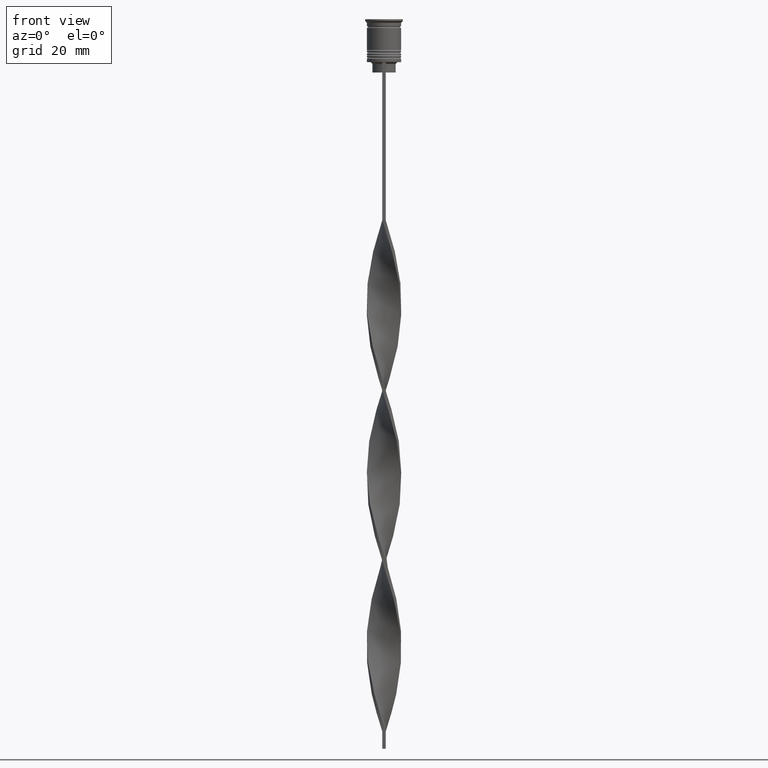
[diagram: clean part render]
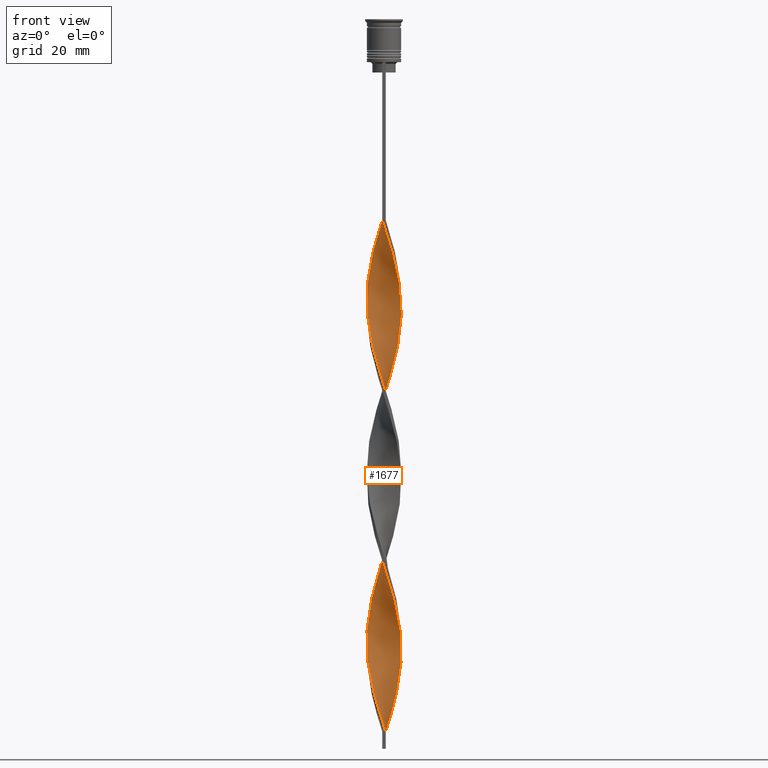
[diagram: same view with one face highlighted and labeled with its STEP entity id]
A machine part, front view. The second image highlights one B-rep face of the part: STEP entity #1677.
In plain terms, the highlighted face is a freeform B-spline surface patch.
Its self-contained STEP definition (entity closure, byte-faithful):
#1 = CARTESIAN_POINT ( 'NONE',  ( 0.4999999999999993339, -5.000000000000000888, -108.1666666666666572 ) ) ;
#6 = CARTESIAN_POINT ( 'NONE',  ( 4.932536701743522656, 0.9592088854640251627, -134.4607843137254974 ) ) ;
#13 = CARTESIAN_POINT ( 'NONE',  ( 4.533641475362163220, 2.216507476658134301, -92.09803921568628482 ) ) ;
#28 = CARTESIAN_POINT ( 'NONE',  ( -2.272444445637942678, -4.481740313928202823, -151.9901960784313530 ) ) ;
#31 = CARTESIAN_POINT ( 'NONE',  ( 1.857150046639457264, 4.692313302143462650, -103.7843137254901933 ) ) ;
#36 = CARTESIAN_POINT ( 'NONE',  ( -1.788740585195520483, 4.718815268696137544, -115.4705882352941018 ) ) ;
#38 = CARTESIAN_POINT ( 'NONE',  ( -5.021420494578373805, -0.5021420494578369143, -83.33333333333332860 ) ) ;
#47 = CARTESIAN_POINT ( 'NONE',  ( 5.024805061206823353, -0.03652529083100791024, -184.1274509803921546 ) ) ;
#68 = CARTESIAN_POINT ( 'NONE',  ( 4.004954025026647102, -3.070367026697014889, -173.9019607843137294 ) ) ;
#72 = CARTESIAN_POINT ( 'NONE',  ( -4.533641475362163220, -2.216507476658133413, -141.7647058823529562 ) ) ;
#74 = CARTESIAN_POINT ( 'NONE',  ( -4.004954025026648878, -3.070367026697016666, -92.09803921568628482 ) ) ;
#87 = CARTESIAN_POINT ( 'NONE',  ( 2.687738844636428759, 4.271167325712943885, -200.1960784313725981 ) ) ;
#90 = CARTESIAN_POINT ( 'NONE',  ( -0.4272610392409010860, -5.006740257327794374, -105.2450980392156765 ) ) ;
#92 = CARTESIAN_POINT ( 'NONE',  ( -2.207052246521971295, 4.514301760086747883, -116.9313725490195992 ) ) ;
#108 = CARTESIAN_POINT ( 'NONE',  ( 4.863729793964998827, 1.345712789752186556, -188.5098039215686185 ) ) ;
#110 = EDGE_CURVE ( 'NONE', #1870, #700, #231, .T. ) ;
#126 = CARTESIAN_POINT ( 'NONE',  ( 3.688768818211569211, -3.412181795536401108, -172.4411764705882035 ) ) ;
#140 = EDGE_LOOP ( 'NONE', ( #1778, #624, #1569, #3165 ) ) ;
#148 = CARTESIAN_POINT ( 'NONE',  ( 0.8912038472716545812, 4.967148691534573501, -153.4509803921568789 ) ) ;
#152 = CARTESIAN_POINT ( 'NONE',  ( -2.998973759622457713, -4.031892407926574329, -195.8137254901960773 ) ) ;
#161 = CARTESIAN_POINT ( 'NONE',  ( 1.788740585195520927, -4.718815268696137544, -65.80392156862745878 ) ) ;
#163 = CARTESIAN_POINT ( 'NONE',  ( 1.857150046639456598, -4.692313302143463538, -112.5490196078431495 ) ) ;
#164 = CARTESIAN_POINT ( 'NONE',  ( -2.687738844636429647, 4.271167325712944773, -65.80392156862745878 ) ) ;
#166 = CARTESIAN_POINT ( 'NONE',  ( -4.500940532747438994, -2.282179822423430871, -188.5098039215686185 ) ) ;
#181 = CARTESIAN_POINT ( 'NONE',  ( 0.4272610392409006419, -5.006740257327792598, -61.42156862745097357 ) ) ;
#193 = CARTESIAN_POINT ( 'NONE',  ( -3.426799919866744482, 3.704571868705844206, -168.0588235294117680 ) ) ;
#213 = CARTESIAN_POINT ( 'NONE',  ( 0.4272610392409006419, -5.006740257327792598, -61.42156862745097357 ) ) ;
#231 =( BOUNDED_CURVE ( )  B_SPLINE_CURVE ( 2, ( #1079, #3580, #181, #3312, #2946, #161, #3617, #1445, #2682, #2621, #788, #1463, #1425, #3879, #1401, #473, #3855, #1108, #2366, #831, #3560, #2666, #3594, #1131, #2052, #3273, #512, #2073, #536, #1773, #2188, #3415, #572, #1901, #1206, #1729, #344, #1619, #711, #36, #92, #3409, #650, #3465, #1897, #1950, #3735, #3121, #1598, #2828, #1298, #2224, #3446, #688, #3152, #379, #2855, #72, #1316, #1509, #1800, #1275, #3091, #3362, #28, #310, #2436, #2414, #910, #3380, #2748, #3114, #2116, #253, #3666, #2498, #2460, #3943, #337, #3976, #3643, #3706, #2133, #563, #601, #2480, #1550, #1574, #1841, #2806, #1234, #949, #3035, #893, #1887, #3955, #3072, #2173, #2198, #2153, #1493, #3337, #3055 ),
 .UNSPECIFIED., .F., .T. ) 
 B_SPLINE_CURVE_WITH_KNOTS ( ( 3, 2, 2, 2, 2, 2, 2, 2, 2, 2, 2, 2, 2, 2, 2, 2, 2, 2, 2, 2, 2, 2, 2, 2, 2, 2, 2, 2, 2, 2, 2, 2, 2, 2, 2, 2, 2, 2, 2, 2, 2, 2, 2, 2, 2, 2, 2, 2, 2, 2, 2, 3 ),
 ( 0.000000000000000000, 0.01470588235294117453, 0.02941176470588234906, 0.04411764705882353227, 0.05882352941176469813, 0.07352941176470588480, 0.08823529411764706454, 0.1029411764705882443, 0.1176470588235293963, 0.1323529411764705899, 0.1470588235294117696, 0.1617647058823529493, 0.1764705882352941291, 0.1911764705882352811, 0.2058823529411764885, 0.2205882352941176405, 0.2352941176470587925, 0.2500000000000000000, 0.2647058823529411797, 0.2794117647058823595, 0.2941176470588235392, 0.3088235294117647189, 0.3235294117647058987, 0.3382352941176470229, 0.3529411764705882582, 0.3676470588235294379, 0.3823529411764705621, 0.3970588235294117418, 0.4117647058823529771, 0.4264705882352941013, 0.4411764705882352811, 0.4558823529411764608, 0.4705882352941175850, 0.4852941176470588203, 0.5000000000000000000, 0.5147058823529411242, 0.5294117647058823595, 0.5441176470588234837, 0.5588235294117647189, 0.5735294117647058432, 0.5882352941176470784, 0.6029411764705882026, 0.6176470588235294379, 0.6323529411764705621, 0.6470588235294117974, 0.6617647058823529216, 0.6764705882352940458, 0.6911764705882351700, 0.7058823529411765163, 0.7205882352941176405, 0.7352941176470588758, 0.7500000000000000000 ),
 .UNSPECIFIED. ) 
 CURVE ( )  GEOMETRIC_REPRESENTATION_ITEM ( )  RATIONAL_B_SPLINE_CURVE ( ( 1.000000000000000000, 0.9957341762950344677, 1.000000000000000000, 0.9957341762950344677, 1.000000000000000000, 0.9957341762950344677, 1.000000000000000000, 0.9957341762950344677, 1.000000000000000000, 0.9957341762950344677, 1.000000000000000000, 0.9957341762950344677, 1.000000000000000000, 0.9957341762950344677, 1.000000000000000000, 0.9957341762950344677, 1.000000000000000000, 0.9957341762950344677, 1.000000000000000000, 0.9957341762950344677, 1.000000000000000000, 0.9957341762950344677, 1.000000000000000000, 0.9957341762950344677, 1.000000000000000000, 0.9957341762950344677, 1.000000000000000000, 0.9957341762950344677, 1.000000000000000000, 0.9957341762950344677, 1.000000000000000000, 0.9957341762950344677, 1.000000000000000000, 0.9957341762950344677, 1.000000000000000000, 0.9957341762950344677, 1.000000000000000000, 0.9957341762950344677, 1.000000000000000000, 0.9957341762950344677, 1.000000000000000000, 0.9957341762950344677, 1.000000000000000000, 0.9957341762950344677, 1.000000000000000000, 0.9957341762950344677, 1.000000000000000000, 0.9957341762950344677, 1.000000000000000000, 0.9957341762950344677, 1.000000000000000000, 0.9957341762950344677, 1.000000000000000000, 0.9957341762950344677, 1.000000000000000000, 0.9957341762950344677, 1.000000000000000000, 0.9957341762950344677, 1.000000000000000000, 0.9957341762950344677, 1.000000000000000000, 0.9957341762950344677, 1.000000000000000000, 0.9957341762950344677, 1.000000000000000000, 0.9957341762950344677, 1.000000000000000000, 0.9957341762950344677, 1.000000000000000000, 0.9957341762950344677, 1.000000000000000000, 0.9957341762950344677, 1.000000000000000000, 0.9957341762950344677, 1.000000000000000000, 0.9957341762950344677, 1.000000000000000000, 0.9957341762950344677, 1.000000000000000000, 0.9957341762950344677, 1.000000000000000000, 0.9957341762950344677, 1.000000000000000000, 0.9957341762950344677, 1.000000000000000000, 0.9957341762950344677, 1.000000000000000000, 0.9957341762950344677, 1.000000000000000000, 0.9957341762950344677, 1.000000000000000000, 0.9957341762950344677, 1.000000000000000000, 0.9957341762950344677, 1.000000000000000000, 0.9957341762950344677, 1.000000000000000000, 0.9957341762950344677, 1.000000000000000000, 0.9957341762950344677, 1.000000000000000000, 0.9957341762950344677, 1.000000000000000000 ) ) 
 REPRESENTATION_ITEM ( '' )  );
#245 = CARTESIAN_POINT ( 'NONE',  ( -4.698685634663581467, 1.781110133205160651, -175.3627450980391984 ) ) ;
#253 = CARTESIAN_POINT ( 'NONE',  ( 1.788740585195520927, -4.718815268696137544, -165.1372549019608016 ) ) ;
#255 = CARTESIAN_POINT ( 'NONE',  ( 2.272444445637942234, 4.481740313928202823, -102.3235294117646959 ) ) ;
#268 = CARTESIAN_POINT ( 'NONE',  ( 4.698685634663582356, -1.781110133205159318, -125.6960784313725412 ) ) ;
#274 = CARTESIAN_POINT ( 'NONE',  ( 1.410234138924802538, 4.822990739511222813, -105.2450980392156765 ) ) ;
#281 = CARTESIAN_POINT ( 'NONE',  ( -3.057269382251586176, 3.987869597209393824, -67.26470588235292780 ) ) ;
#286 = CARTESIAN_POINT ( 'NONE',  ( 0.4999999999999993339, -5.000000000000000888, -108.1666666666666572 ) ) ;
#293 = CARTESIAN_POINT ( 'NONE',  ( -0.5000000000000000000, -4.999999999999999112, -157.8333333333333144 ) ) ;
#310 = CARTESIAN_POINT ( 'NONE',  ( -1.857150046639457930, -4.692313302143461762, -153.4509803921568789 ) ) ;
#314 = CARTESIAN_POINT ( 'NONE',  ( 2.998973759622455937, -4.031892407926573441, -70.18627450980390847 ) ) ;
#322 = CARTESIAN_POINT ( 'NONE',  ( -4.863729793965000603, 1.345712789752187666, -77.49019607843136725 ) ) ;
#325 = CARTESIAN_POINT ( 'NONE',  ( 0.03668176878985187489, -5.046331823121017024, -106.7058823529411882 ) ) ;
#337 = CARTESIAN_POINT ( 'NONE',  ( 3.688768818211569211, -3.412181795536401108, -172.4411764705882035 ) ) ;
#339 = CARTESIAN_POINT ( 'NONE',  ( -4.533641475362163220, -2.216507476658133413, -141.7647058823529562 ) ) ;
#344 = CARTESIAN_POINT ( 'NONE',  ( -0.4272610392408995317, 5.006740257327792598, -111.0882352941176379 ) ) ;
#345 = CARTESIAN_POINT ( 'NONE',  ( -4.932536701743522656, -0.9592088854640269391, -84.79411764705882604 ) ) ;
#353 = CARTESIAN_POINT ( 'NONE',  ( -1.857150046639456598, 4.692313302143463538, -62.88235294117647811 ) ) ;
#360 = CARTESIAN_POINT ( 'NONE',  ( -4.500940532747438105, -2.282179822423430871, -89.17647058823528994 ) ) ;
#371 = CARTESIAN_POINT ( 'NONE',  ( 0.8912038472716523607, -4.967148691534572613, -162.2156862745098351 ) ) ;
#377 = VECTOR ( 'NONE', #2246, 1000.000000000000000 ) ;
#379 = CARTESIAN_POINT ( 'NONE',  ( -4.863729793964999715, -1.345712789752185001, -138.8431372549019329 ) ) ;
#395 = CARTESIAN_POINT ( 'NONE',  ( -4.004954025026648878, -3.070367026697016666, -92.09803921568628482 ) ) ;
#415 = CARTESIAN_POINT ( 'NONE',  ( 1.788740585195520927, -4.718815268696137544, -165.1372549019608016 ) ) ;
#432 = CARTESIAN_POINT ( 'NONE',  ( -1.410234138924802982, 4.822990739511224589, -61.42156862745097357 ) ) ;
#434 = CARTESIAN_POINT ( 'NONE',  ( 4.945959710900135420, 0.8874021287740047059, -187.0490196078431211 ) ) ;
#456 = CARTESIAN_POINT ( 'NONE',  ( -0.9633182312101491451, 4.953668176878985641, -159.2941176470588118 ) ) ;
#473 = CARTESIAN_POINT ( 'NONE',  ( 4.843652908908670618, -1.416275721470217297, -80.41176470588234793 ) ) ;
#476 = CARTESIAN_POINT ( 'NONE',  ( 4.500940532747439882, 2.282179822423429094, -138.8431372549019045 ) ) ;
#481 = CARTESIAN_POINT ( 'NONE',  ( 0.03668176878985187489, -5.046331823121017024, -206.0392156862745026 ) ) ;
#497 = CARTESIAN_POINT ( 'NONE',  ( 3.737982676843116359, -3.358196764280017454, -119.8529411764705799 ) ) ;
#499 =( BOUNDED_SURFACE ( )  B_SPLINE_SURFACE ( 1, 2, ( 
 ( #2058, #2999, #213, #1152, #2081, #3302, #544, #2731, #314, #3978, #3116, #2766, #1554, #1496, #1214, #952, #2793, #3424, #2483, #3728, #3958, #894, #3944, #13, #641, #3668, #1278, #1238, #3364, #1825, #255, #31, #274, #1577, #1199, #2809, #602, #2117, #975, #3057, #1511, #3646, #1865, #936, #1803, #1260, #2201, #3709, #2463, #2176, #3690, #3339, #2501, #3037, #3400, #1891, #2417, #339, #582, #2750, #2156, #2438, #1529, #620, #913, #2136, #1843, #3074, #293, #3382, #3092, #371, #1611, #415, #1911, #2848, #3202, #1371, #126, #68, #1979, #702, #681, #3144, #1050, #1592, #47, #3186, #434, #108, #666, #3457, #2583, #1655, #1674, #3767, #2909, #87, #3803, #3130, #2523, #2606, #1310 ),
 ( #1069, #1963, #1330, #353, #3821, #2275, #2294, #2542, #2889, #3501, #748, #1029, #1349, #2825, #2235, #2219, #1013, #2869, #1942, #1292, #3751, #997, #3167, #395, #1635, #3440, #2253, #3483, #2560, #1923, #3780, #726, #3968, #1736, #286, #1483, #1085, #2933, #3950, #1207, #1225, #596, #497, #3068, #2335, #2037, #268, #1521, #3330, #2950, #3221, #1839, #2757, #3355, #2974, #476, #573, #3258, #767, #3564, #3518, #3051, #1698, #1192, #1506, #148, #903, #2429, #1999, #456, #1814, #3657, #2742, #1385, #2624, #3837, #2312, #2127, #3637, #3242, #245, #2407, #1116, #3543, #794, #2019, #2724, #2646, #1717, #166, #1405, #3861, #886, #3938, #815, #2108, #1304, #1270, #3720, #1251, #693, #3085, #3374 ) ),
 .UNSPECIFIED., .F., .F., .F. ) 
 B_SPLINE_SURFACE_WITH_KNOTS ( ( 2, 2 ),
 ( 3, 2, 2, 2, 2, 2, 2, 2, 2, 2, 2, 2, 2, 2, 2, 2, 2, 2, 2, 2, 2, 2, 2, 2, 2, 2, 2, 2, 2, 2, 2, 2, 2, 2, 2, 2, 2, 2, 2, 2, 2, 2, 2, 2, 2, 2, 2, 2, 2, 2, 2, 3 ),
 ( 0.000000000000000000, 1.000000000000000000 ),
 ( 0.000000000000000000, 0.01470588235294117627, 0.02941176470588235253, 0.04411764705882353227, 0.05882352941176470507, 0.07352941176470588480, 0.08823529411764706454, 0.1029411764705882304, 0.1176470588235294101, 0.1323529411764705899, 0.1470588235294117696, 0.1617647058823529493, 0.1764705882352941291, 0.1911764705882352811, 0.2058823529411764608, 0.2205882352941176405, 0.2352941176470588203, 0.2500000000000000000, 0.2647058823529411797, 0.2794117647058823595, 0.2941176470588235392, 0.3088235294117647189, 0.3235294117647058987, 0.3382352941176470784, 0.3529411764705882582, 0.3676470588235294379, 0.3823529411764705621, 0.3970588235294117418, 0.4117647058823529216, 0.4264705882352941013, 0.4411764705882352811, 0.4558823529411764608, 0.4705882352941176405, 0.4852941176470588203, 0.5000000000000000000, 0.5147058823529411242, 0.5294117647058823595, 0.5441176470588234837, 0.5588235294117647189, 0.5735294117647058432, 0.5882352941176470784, 0.6029411764705882026, 0.6176470588235294379, 0.6323529411764705621, 0.6470588235294117974, 0.6617647058823529216, 0.6764705882352941568, 0.6911764705882352811, 0.7058823529411765163, 0.7205882352941176405, 0.7352941176470588758, 0.7500000000000000000 ),
 .UNSPECIFIED. ) 
 GEOMETRIC_REPRESENTATION_ITEM ( )  RATIONAL_B_SPLINE_SURFACE ( (
 ( 1.000000000000000000, 0.9957341762950344677, 1.000000000000000000, 0.9957341762950344677, 1.000000000000000000, 0.9957341762950344677, 1.000000000000000000, 0.9957341762950344677, 1.000000000000000000, 0.9957341762950344677, 1.000000000000000000, 0.9957341762950344677, 1.000000000000000000, 0.9957341762950344677, 1.000000000000000000, 0.9957341762950344677, 1.000000000000000000, 0.9957341762950344677, 1.000000000000000000, 0.9957341762950344677, 1.000000000000000000, 0.9957341762950344677, 1.000000000000000000, 0.9957341762950344677, 1.000000000000000000, 0.9957341762950344677, 1.000000000000000000, 0.9957341762950344677, 1.000000000000000000, 0.9957341762950344677, 1.000000000000000000, 0.9957341762950344677, 1.000000000000000000, 0.9957341762950344677, 1.000000000000000000, 0.9957341762950344677, 1.000000000000000000, 0.9957341762950344677, 1.000000000000000000, 0.9957341762950344677, 1.000000000000000000, 0.9957341762950344677, 1.000000000000000000, 0.9957341762950344677, 1.000000000000000000, 0.9957341762950344677, 1.000000000000000000, 0.9957341762950344677, 1.000000000000000000, 0.9957341762950344677, 1.000000000000000000, 0.9957341762950344677, 1.000000000000000000, 0.9957341762950344677, 1.000000000000000000, 0.9957341762950344677, 1.000000000000000000, 0.9957341762950344677, 1.000000000000000000, 0.9957341762950344677, 1.000000000000000000, 0.9957341762950344677, 1.000000000000000000, 0.9957341762950344677, 1.000000000000000000, 0.9957341762950344677, 1.000000000000000000, 0.9957341762950344677, 1.000000000000000000, 0.9957341762950344677, 1.000000000000000000, 0.9957341762950344677, 1.000000000000000000, 0.9957341762950344677, 1.000000000000000000, 0.9957341762950344677, 1.000000000000000000, 0.9957341762950344677, 1.000000000000000000, 0.9957341762950344677, 1.000000000000000000, 0.9957341762950344677, 1.000000000000000000, 0.9957341762950344677, 1.000000000000000000, 0.9957341762950344677, 1.000000000000000000, 0.9957341762950344677, 1.000000000000000000, 0.9957341762950344677, 1.000000000000000000, 0.9957341762950344677, 1.000000000000000000, 0.9957341762950344677, 1.000000000000000000, 0.9957341762950344677, 1.000000000000000000, 0.9957341762950344677, 1.000000000000000000, 0.9957341762950344677, 1.000000000000000000, 0.9957341762950344677, 1.000000000000000000),
 ( 1.000000000000000000, 0.9957341762950344677, 1.000000000000000000, 0.9957341762950344677, 1.000000000000000000, 0.9957341762950344677, 1.000000000000000000, 0.9957341762950344677, 1.000000000000000000, 0.9957341762950344677, 1.000000000000000000, 0.9957341762950344677, 1.000000000000000000, 0.9957341762950344677, 1.000000000000000000, 0.9957341762950344677, 1.000000000000000000, 0.9957341762950344677, 1.000000000000000000, 0.9957341762950344677, 1.000000000000000000, 0.9957341762950344677, 1.000000000000000000, 0.9957341762950344677, 1.000000000000000000, 0.9957341762950344677, 1.000000000000000000, 0.9957341762950344677, 1.000000000000000000, 0.9957341762950344677, 1.000000000000000000, 0.9957341762950344677, 1.000000000000000000, 0.9957341762950344677, 1.000000000000000000, 0.9957341762950344677, 1.000000000000000000, 0.9957341762950344677, 1.000000000000000000, 0.9957341762950344677, 1.000000000000000000, 0.9957341762950344677, 1.000000000000000000, 0.9957341762950344677, 1.000000000000000000, 0.9957341762950344677, 1.000000000000000000, 0.9957341762950344677, 1.000000000000000000, 0.9957341762950344677, 1.000000000000000000, 0.9957341762950344677, 1.000000000000000000, 0.9957341762950344677, 1.000000000000000000, 0.9957341762950344677, 1.000000000000000000, 0.9957341762950344677, 1.000000000000000000, 0.9957341762950344677, 1.000000000000000000, 0.9957341762950344677, 1.000000000000000000, 0.9957341762950344677, 1.000000000000000000, 0.9957341762950344677, 1.000000000000000000, 0.9957341762950344677, 1.000000000000000000, 0.9957341762950344677, 1.000000000000000000, 0.9957341762950344677, 1.000000000000000000, 0.9957341762950344677, 1.000000000000000000, 0.9957341762950344677, 1.000000000000000000, 0.9957341762950344677, 1.000000000000000000, 0.9957341762950344677, 1.000000000000000000, 0.9957341762950344677, 1.000000000000000000, 0.9957341762950344677, 1.000000000000000000, 0.9957341762950344677, 1.000000000000000000, 0.9957341762950344677, 1.000000000000000000, 0.9957341762950344677, 1.000000000000000000, 0.9957341762950344677, 1.000000000000000000, 0.9957341762950344677, 1.000000000000000000, 0.9957341762950344677, 1.000000000000000000, 0.9957341762950344677, 1.000000000000000000, 0.9957341762950344677, 1.000000000000000000, 0.9957341762950344677, 1.000000000000000000) ) ) 
 REPRESENTATION_ITEM ( '' )  SURFACE ( )  );
#512 = CARTESIAN_POINT ( 'NONE',  ( 3.737982676843115915, 3.358196764280015678, -96.48039215686274872 ) ) ;
#523 = CARTESIAN_POINT ( 'NONE',  ( -0.8912038472716539150, -4.967148691534573501, -203.1176470588235361 ) ) ;
#536 = CARTESIAN_POINT ( 'NONE',  ( 3.057269382251585288, 3.987869597209392936, -99.40196078431372939 ) ) ;
#544 = CARTESIAN_POINT ( 'NONE',  ( 2.207052246521970851, -4.514301760086748772, -67.26470588235292780 ) ) ;
#563 = CARTESIAN_POINT ( 'NONE',  ( 4.843652908908670618, -1.416275721470217297, -179.7450980392157476 ) ) ;
#564 = CARTESIAN_POINT ( 'NONE',  ( -1.857150046639456598, 4.692313302143463538, -162.2156862745098351 ) ) ;
#572 = CARTESIAN_POINT ( 'NONE',  ( 1.410234138924802538, 4.822990739511222813, -105.2450980392156765 ) ) ;
#573 = CARTESIAN_POINT ( 'NONE',  ( 4.252947278887043048, 2.676273424560224434, -140.3039215686274588 ) ) ;
#582 = CARTESIAN_POINT ( 'NONE',  ( -4.291403454590826172, -2.614164568256160948, -143.2254901960784537 ) ) ;
#596 = CARTESIAN_POINT ( 'NONE',  ( 3.426799919866742705, -3.704571868705845095, -118.3921568627451109 ) ) ;
#598 = CARTESIAN_POINT ( 'NONE',  ( 4.291403454590826172, -2.614164568256163612, -122.7745098039215605 ) ) ;
#600 = CARTESIAN_POINT ( 'NONE',  ( 4.863729793965000603, -1.345712789752187444, -127.1568627450980244 ) ) ;
#601 = CARTESIAN_POINT ( 'NONE',  ( 4.932536701743520879, -0.9592088854640271611, -181.2058823529411598 ) ) ;
#602 = CARTESIAN_POINT ( 'NONE',  ( -0.4272610392408995317, 5.006740257327792598, -111.0882352941176379 ) ) ;
#620 = CARTESIAN_POINT ( 'NONE',  ( -2.687738844636427871, -4.271167325712944773, -150.5294117647058840 ) ) ;
#624 = ORIENTED_EDGE ( 'NONE', *, *, #1631, .T. ) ;
#634 = CARTESIAN_POINT ( 'NONE',  ( 4.843652908908672394, 1.416275721470218629, -135.9215686274509665 ) ) ;
#641 = CARTESIAN_POINT ( 'NONE',  ( 4.291403454590825284, 2.614164568256161392, -93.55882352941176805 ) ) ;
#650 = CARTESIAN_POINT ( 'NONE',  ( -2.998973759622455937, 4.031892407926573441, -119.8529411764705799 ) ) ;
#666 = CARTESIAN_POINT ( 'NONE',  ( 4.698685634663579691, 1.781110133205159318, -189.9705882352941160 ) ) ;
#672 = CARTESIAN_POINT ( 'NONE',  ( -4.672296720828054362, -1.849227771946824417, -87.71568627450979250 ) ) ;
#681 = CARTESIAN_POINT ( 'NONE',  ( 4.672296720828052585, -1.849227771946823307, -178.2843137254901933 ) ) ;
#688 = CARTESIAN_POINT ( 'NONE',  ( -5.028189627835276454, -0.4290914677958234114, -135.9215686274509665 ) ) ;
#693 = CARTESIAN_POINT ( 'NONE',  ( -0.4272610392409010860, -5.006740257327794374, -204.5784313725490335 ) ) ;
#700 = VERTEX_POINT ( 'NONE', #3183 ) ;
#702 = CARTESIAN_POINT ( 'NONE',  ( 4.500940532747437217, -2.282179822423430426, -176.8235294117647243 ) ) ;
#711 = CARTESIAN_POINT ( 'NONE',  ( -1.339972216233587421, 4.842981980115354190, -114.0098039215686185 ) ) ;
#726 = CARTESIAN_POINT ( 'NONE',  ( -0.8912038472716539150, -4.967148691534573501, -103.7843137254901933 ) ) ;
#748 = CARTESIAN_POINT ( 'NONE',  ( -4.291403454590826172, 2.614164568256163168, -73.10784313725488914 ) ) ;
#767 = CARTESIAN_POINT ( 'NONE',  ( 3.688768818211571876, 3.412181795536401108, -143.2254901960784537 ) ) ;
#788 = CARTESIAN_POINT ( 'NONE',  ( 3.688768818211569211, -3.412181795536401108, -73.10784313725488914 ) ) ;
#794 = CARTESIAN_POINT ( 'NONE',  ( -5.024805061206824242, -0.03652529083100704288, -181.2058823529411598 ) ) ;
#801 = CARTESIAN_POINT ( 'NONE',  ( -1.339972216233586977, -4.842981980115355967, -201.6568627450980387 ) ) ;
#815 = CARTESIAN_POINT ( 'NONE',  ( -2.998973759622457713, -4.031892407926574329, -195.8137254901960773 ) ) ;
#831 = CARTESIAN_POINT ( 'NONE',  ( 5.028189627835276454, 0.4290914677958227452, -86.25490196078432348 ) ) ;
#836 = FACE_OUTER_BOUND ( 'NONE', #140, .T. ) ;
#858 = CARTESIAN_POINT ( 'NONE',  ( -0.4272610392409010860, -5.006740257327794374, -204.5784313725490335 ) ) ;
#875 = CARTESIAN_POINT ( 'NONE',  ( -5.028189627835278230, 0.4290914677958227452, -179.7450980392157476 ) ) ;
#884 = CARTESIAN_POINT ( 'NONE',  ( 0.4999999999999993339, -5.000000000000000888, -207.5000000000000000 ) ) ;
#886 = CARTESIAN_POINT ( 'NONE',  ( -3.688768818211570988, -3.412181795536401552, -192.8921568627450824 ) ) ;
#893 = CARTESIAN_POINT ( 'NONE',  ( 4.049165433819487347, 3.011821659854190703, -194.3529411764705799 ) ) ;
#894 = CARTESIAN_POINT ( 'NONE',  ( 4.863729793964998827, 1.345712789752186556, -89.17647058823527573 ) ) ;
#903 = CARTESIAN_POINT ( 'NONE',  ( 0.4272610392408995317, 5.006740257327794374, -154.9117647058823479 ) ) ;
#910 = CARTESIAN_POINT ( 'NONE',  ( -0.5000000000000000000, -4.999999999999999112, -157.8333333333333144 ) ) ;
#913 = CARTESIAN_POINT ( 'NONE',  ( -2.272444445637942678, -4.481740313928202823, -151.9901960784313530 ) ) ;
#927 = CARTESIAN_POINT ( 'NONE',  ( -1.788740585195522481, -4.718815268696138432, -100.8627450980392126 ) ) ;
#936 = CARTESIAN_POINT ( 'NONE',  ( -3.372583611396490877, 3.753996564375788658, -121.3137254901960631 ) ) ;
#949 = CARTESIAN_POINT ( 'NONE',  ( 4.533641475362163220, 2.216507476658134301, -191.4313725490196134 ) ) ;
#952 = CARTESIAN_POINT ( 'NONE',  ( 4.843652908908670618, -1.416275721470217519, -80.41176470588234793 ) ) ;
#969 = CARTESIAN_POINT ( 'NONE',  ( 4.004954025026648878, 3.070367026697015778, -141.7647058823529562 ) ) ;
#975 = CARTESIAN_POINT ( 'NONE',  ( -1.339972216233587421, 4.842981980115354190, -114.0098039215686185 ) ) ;
#997 = CARTESIAN_POINT ( 'NONE',  ( -4.500940532747438994, -2.282179822423430871, -89.17647058823527573 ) ) ;
#1010 = CARTESIAN_POINT ( 'NONE',  ( 5.028189627835277342, -0.4290914677958209134, -130.0784313725490335 ) ) ;
#1013 = CARTESIAN_POINT ( 'NONE',  ( -5.024805061206824242, -0.03652529083100704288, -81.87254901960783116 ) ) ;
#1029 = CARTESIAN_POINT ( 'NONE',  ( -4.533641475362164996, 2.216507476658134301, -74.56862745098038658 ) ) ;
#1042 = CARTESIAN_POINT ( 'NONE',  ( -0.5000000000000000000, -4.999999999999999112, -58.50000000000000000 ) ) ;
#1050 = CARTESIAN_POINT ( 'NONE',  ( 4.932536701743520879, -0.9592088854640271611, -181.2058823529411598 ) ) ;
#1060 = EDGE_CURVE ( 'NONE', #700, #1321, #3388, .T. ) ;
#1069 = CARTESIAN_POINT ( 'NONE',  ( -0.5000000000000000000, 5.000000000000000888, -58.50000000000000000 ) ) ;
#1079 = CARTESIAN_POINT ( 'NONE',  ( -0.5000000000000000000, -4.999999999999999112, -58.50000000000000000 ) ) ;
#1083 = CARTESIAN_POINT ( 'NONE',  ( -0.5000000000000000000, 5.000000000000000888, -58.50000000000000000 ) ) ;
#1085 = CARTESIAN_POINT ( 'NONE',  ( 1.410234138924801650, -4.822990739511224589, -111.0882352941176379 ) ) ;
#1092 = CARTESIAN_POINT ( 'NONE',  ( -4.533641475362164996, 2.216507476658134301, -173.9019607843137294 ) ) ;
#1108 = CARTESIAN_POINT ( 'NONE',  ( 5.021420494578372029, -0.5021420494578375804, -83.33333333333332860 ) ) ;
#1113 = CARTESIAN_POINT ( 'NONE',  ( -1.857150046639456598, 4.692313302143463538, -62.88235294117647101 ) ) ;
#1116 = CARTESIAN_POINT ( 'NONE',  ( -4.945959710900137196, 0.8874021287740044839, -178.2843137254901933 ) ) ;
#1121 = CARTESIAN_POINT ( 'NONE',  ( 3.372583611396489989, 3.753996564375790879, -144.6862745098039227 ) ) ;
#1131 = CARTESIAN_POINT ( 'NONE',  ( 4.533641475362163220, 2.216507476658134301, -92.09803921568628482 ) ) ;
#1152 = CARTESIAN_POINT ( 'NONE',  ( 0.8912038472716523607, -4.967148691534572613, -62.88235294117647811 ) ) ;
#1158 = EDGE_CURVE ( 'NONE', #1870, #3453, #2835, .T. ) ;
#1176 = CARTESIAN_POINT ( 'NONE',  ( 0.8912038472716545812, 4.967148691534573501, -153.4509803921568789 ) ) ;
#1192 = CARTESIAN_POINT ( 'NONE',  ( 1.788740585195520927, 4.718815268696140208, -150.5294117647058840 ) ) ;
#1199 = CARTESIAN_POINT ( 'NONE',  ( 0.5000000000000006661, 4.999999999999999112, -108.1666666666666572 ) ) ;
#1206 = CARTESIAN_POINT ( 'NONE',  ( 0.5000000000000006661, 4.999999999999999112, -108.1666666666666572 ) ) ;
#1207 = CARTESIAN_POINT ( 'NONE',  ( 2.687738844636429203, -4.271167325712945662, -115.4705882352940876 ) ) ;
#1214 = CARTESIAN_POINT ( 'NONE',  ( 4.672296720828052585, -1.849227771946823307, -78.95098039215686470 ) ) ;
#1225 = CARTESIAN_POINT ( 'NONE',  ( 3.057269382251586620, -3.987869597209393824, -116.9313725490195992 ) ) ;
#1234 = CARTESIAN_POINT ( 'NONE',  ( 4.698685634663579691, 1.781110133205159318, -189.9705882352941160 ) ) ;
#1238 = CARTESIAN_POINT ( 'NONE',  ( 3.426799919866742705, 3.704571868705843318, -97.94117647058824616 ) ) ;
#1251 = CARTESIAN_POINT ( 'NONE',  ( -0.8912038472716539150, -4.967148691534573501, -203.1176470588235361 ) ) ;
#1253 = CARTESIAN_POINT ( 'NONE',  ( 2.687738844636429647, -4.271167325712944773, -115.4705882352941018 ) ) ;
#1260 = CARTESIAN_POINT ( 'NONE',  ( -4.004954025026647102, 3.070367026697016222, -124.2352941176470580 ) ) ;
#1270 = CARTESIAN_POINT ( 'NONE',  ( -1.788740585195522481, -4.718815268696138432, -200.1960784313725981 ) ) ;
#1275 = CARTESIAN_POINT ( 'NONE',  ( -3.426799919866744037, -3.704571868705841986, -147.6078431372548891 ) ) ;
#1278 = CARTESIAN_POINT ( 'NONE',  ( 3.737982676843115915, 3.358196764280015678, -96.48039215686274872 ) ) ;
#1292 = CARTESIAN_POINT ( 'NONE',  ( -4.843652908908672394, -1.416275721470217963, -86.25490196078432348 ) ) ;
#1298 = CARTESIAN_POINT ( 'NONE',  ( -4.932536701743520879, 0.9592088854640268281, -131.5392156862745310 ) ) ;
#1304 = CARTESIAN_POINT ( 'NONE',  ( -2.207052246521971739, -4.514301760086749660, -198.7352941176470722 ) ) ;
#1310 = CARTESIAN_POINT ( 'NONE',  ( 0.5000000000000006661, 4.999999999999999112, -207.5000000000000000 ) ) ;
#1316 = CARTESIAN_POINT ( 'NONE',  ( -4.291403454590826172, -2.614164568256160948, -143.2254901960784537 ) ) ;
#1321 = VERTEX_POINT ( 'NONE', #3529 ) ;
#1330 = CARTESIAN_POINT ( 'NONE',  ( -1.410234138924802982, 4.822990739511224589, -61.42156862745097357 ) ) ;
#1349 = CARTESIAN_POINT ( 'NONE',  ( -4.698685634663581467, 1.781110133205160651, -76.02941176470586981 ) ) ;
#1371 = CARTESIAN_POINT ( 'NONE',  ( 3.372583611396490877, -3.753996564375789102, -170.9803921568627629 ) ) ;
#1385 = CARTESIAN_POINT ( 'NONE',  ( -2.687738844636429203, 4.271167325712945662, -165.1372549019608016 ) ) ;
#1389 = CARTESIAN_POINT ( 'NONE',  ( 3.688768818211571876, 3.412181795536401108, -143.2254901960784537 ) ) ;
#1401 = CARTESIAN_POINT ( 'NONE',  ( 4.672296720828052585, -1.849227771946823307, -78.95098039215686470 ) ) ;
#1405 = CARTESIAN_POINT ( 'NONE',  ( -4.252947278887043936, -2.676273424560222658, -189.9705882352941160 ) ) ;
#1425 = CARTESIAN_POINT ( 'NONE',  ( 4.252947278887042160, -2.676273424560222214, -76.02941176470586981 ) ) ;
#1435 = CARTESIAN_POINT ( 'NONE',  ( -4.863729793965000603, 1.345712789752187666, -176.8235294117647243 ) ) ;
#1445 = CARTESIAN_POINT ( 'NONE',  ( 2.625363907848422773, -4.309788251477359111, -68.72549019607842524 ) ) ;
#1455 = CARTESIAN_POINT ( 'NONE',  ( -4.698685634663581467, 1.781110133205160651, -175.3627450980391984 ) ) ;
#1463 = CARTESIAN_POINT ( 'NONE',  ( 4.004954025026647102, -3.070367026697014889, -74.56862745098038658 ) ) ;
#1483 = CARTESIAN_POINT ( 'NONE',  ( 0.9633182312101494782, -4.953668176878985641, -109.6274509803921546 ) ) ;
#1488 = CARTESIAN_POINT ( 'NONE',  ( 3.057269382251586620, -3.987869597209393824, -116.9313725490195992 ) ) ;
#1493 = CARTESIAN_POINT ( 'NONE',  ( 1.410234138924802538, 4.822990739511222813, -204.5784313725490335 ) ) ;
#1496 = CARTESIAN_POINT ( 'NONE',  ( 4.500940532747437217, -2.282179822423430426, -77.49019607843138147 ) ) ;
#1506 = CARTESIAN_POINT ( 'NONE',  ( 1.339972216233587421, 4.842981980115355967, -151.9901960784313530 ) ) ;
#1508 = CARTESIAN_POINT ( 'NONE',  ( 4.533641475362164108, -2.216507476658135634, -124.2352941176470580 ) ) ;
#1509 = CARTESIAN_POINT ( 'NONE',  ( -4.049165433819486459, -3.011821659854192479, -144.6862745098039227 ) ) ;
#1511 = CARTESIAN_POINT ( 'NONE',  ( -2.207052246521971295, 4.514301760086747883, -116.9313725490195992 ) ) ;
#1518 = CARTESIAN_POINT ( 'NONE',  ( -3.426799919866744482, 3.704571868705844206, -68.72549019607842524 ) ) ;
#1521 = CARTESIAN_POINT ( 'NONE',  ( 4.863729793965000603, -1.345712789752187444, -127.1568627450980102 ) ) ;
#1529 = CARTESIAN_POINT ( 'NONE',  ( -3.057269382251587064, -3.987869597209391159, -149.0686274509803866 ) ) ;
#1538 = CARTESIAN_POINT ( 'NONE',  ( -4.049165433819489124, 3.011821659854192035, -71.64705882352942012 ) ) ;
#1550 = CARTESIAN_POINT ( 'NONE',  ( 5.024805061206823353, -0.03652529083100791024, -184.1274509803921546 ) ) ;
#1554 = CARTESIAN_POINT ( 'NONE',  ( 4.252947278887042160, -2.676273424560222214, -76.02941176470586981 ) ) ;
#1563 = CARTESIAN_POINT ( 'NONE',  ( -3.737982676843116359, 3.358196764280017454, -70.18627450980390847 ) ) ;
#1569 = ORIENTED_EDGE ( 'NONE', *, *, #1060, .F. ) ;
#1574 = CARTESIAN_POINT ( 'NONE',  ( 5.028189627835276454, 0.4290914677958227452, -185.5882352941176237 ) ) ;
#1577 = CARTESIAN_POINT ( 'NONE',  ( 0.9633182312101483680, 4.953668176878984752, -106.7058823529412024 ) ) ;
#1586 = CARTESIAN_POINT ( 'NONE',  ( 4.500940532747438994, 2.282179822423429538, -138.8431372549019329 ) ) ;
#1592 = CARTESIAN_POINT ( 'NONE',  ( 5.021420494578371141, -0.5021420494578375804, -182.6666666666666572 ) ) ;
#1598 = CARTESIAN_POINT ( 'NONE',  ( -4.672296720828052585, 1.849227771946825083, -128.6176470588235361 ) ) ;
#1611 = CARTESIAN_POINT ( 'NONE',  ( 1.339972216233586311, -4.842981980115355078, -163.6764705882352757 ) ) ;
#1619 = CARTESIAN_POINT ( 'NONE',  ( -0.8912038472716523607, 4.967148691534572613, -112.5490196078431495 ) ) ;
#1631 = EDGE_CURVE ( 'NONE', #3453, #1321, #2565, .T. ) ;
#1635 = CARTESIAN_POINT ( 'NONE',  ( -3.688768818211570988, -3.412181795536401552, -93.55882352941176805 ) ) ;
#1655 = CARTESIAN_POINT ( 'NONE',  ( 4.049165433819487347, 3.011821659854191147, -194.3529411764705799 ) ) ;
#1658 = CARTESIAN_POINT ( 'NONE',  ( -2.207052246521971739, -4.514301760086749660, -99.40196078431372939 ) ) ;
#1674 = CARTESIAN_POINT ( 'NONE',  ( 3.737982676843115915, 3.358196764280015678, -195.8137254901960773 ) ) ;
#1677 = ADVANCED_FACE ( 'NONE', ( #836 ), #499, .T. ) ;
#1698 = CARTESIAN_POINT ( 'NONE',  ( 2.207052246521974403, 4.514301760086747883, -149.0686274509803866 ) ) ;
#1717 = CARTESIAN_POINT ( 'NONE',  ( -4.672296720828054362, -1.849227771946824417, -187.0490196078431211 ) ) ;
#1722 = CARTESIAN_POINT ( 'NONE',  ( -3.737982676843116359, 3.358196764280017454, -169.5196078431372371 ) ) ;
#1729 = CARTESIAN_POINT ( 'NONE',  ( 0.03668176878985084099, 5.046331823121014359, -109.6274509803921404 ) ) ;
#1736 = CARTESIAN_POINT ( 'NONE',  ( 0.03668176878985188183, -5.046331823121017024, -106.7058823529412024 ) ) ;
#1741 = CARTESIAN_POINT ( 'NONE',  ( -3.057269382251586176, 3.987869597209393824, -166.5980392156862706 ) ) ;
#1767 = CARTESIAN_POINT ( 'NONE',  ( -0.9633182312101491451, 4.953668176878985641, -159.2941176470588118 ) ) ;
#1773 = CARTESIAN_POINT ( 'NONE',  ( 2.687738844636429203, 4.271167325712942997, -100.8627450980392126 ) ) ;
#1778 = ORIENTED_EDGE ( 'NONE', *, *, #1158, .T. ) ;
#1783 = CARTESIAN_POINT ( 'NONE',  ( -2.687738844636429647, 4.271167325712944773, -165.1372549019608016 ) ) ;
#1800 = CARTESIAN_POINT ( 'NONE',  ( -3.737982676843114582, -3.358196764280017010, -146.1470588235294201 ) ) ;
#1803 = CARTESIAN_POINT ( 'NONE',  ( -3.688768818211568323, 3.412181795536401552, -122.7745098039215605 ) ) ;
#1814 = CARTESIAN_POINT ( 'NONE',  ( -1.410234138924802982, 4.822990739511224589, -160.7549019607842808 ) ) ;
#1825 = CARTESIAN_POINT ( 'NONE',  ( 2.687738844636428759, 4.271167325712943885, -100.8627450980392126 ) ) ;
#1839 = CARTESIAN_POINT ( 'NONE',  ( 5.021420494578372917, 0.5021420494578362481, -133.0000000000000000 ) ) ;
#1841 = CARTESIAN_POINT ( 'NONE',  ( 4.945959710900135420, 0.8874021287740047059, -187.0490196078431211 ) ) ;
#1843 = CARTESIAN_POINT ( 'NONE',  ( -1.410234138924801206, -4.822990739511222813, -154.9117647058823479 ) ) ;
#1855 = CARTESIAN_POINT ( 'NONE',  ( -1.339972216233586977, -4.842981980115355967, -102.3235294117646959 ) ) ;
#1865 = CARTESIAN_POINT ( 'NONE',  ( -2.998973759622455937, 4.031892407926573441, -119.8529411764705799 ) ) ;
#1870 = VERTEX_POINT ( 'NONE', #1042 ) ;
#1873 = CARTESIAN_POINT ( 'NONE',  ( -4.698685634663581467, 1.781110133205160651, -76.02941176470586981 ) ) ;
#1880 = CARTESIAN_POINT ( 'NONE',  ( 4.672296720828054362, 1.849227771946823751, -137.3823529411764639 ) ) ;
#1887 = CARTESIAN_POINT ( 'NONE',  ( 3.737982676843115915, 3.358196764280015678, -195.8137254901960773 ) ) ;
#1891 = CARTESIAN_POINT ( 'NONE',  ( -4.863729793964999715, -1.345712789752185223, -138.8431372549019045 ) ) ;
#1897 = CARTESIAN_POINT ( 'NONE',  ( -3.688768818211568323, 3.412181795536401552, -122.7745098039215605 ) ) ;
#1901 = CARTESIAN_POINT ( 'NONE',  ( 0.9633182312101482569, 4.953668176878984752, -106.7058823529411882 ) ) ;
#1911 = CARTESIAN_POINT ( 'NONE',  ( 2.207052246521970851, -4.514301760086748772, -166.5980392156862706 ) ) ;
#1923 = CARTESIAN_POINT ( 'NONE',  ( -1.788740585195522481, -4.718815268696138432, -100.8627450980392126 ) ) ;
#1933 = CARTESIAN_POINT ( 'NONE',  ( -0.5000000000000000000, -4.999999999999999112, -58.50000000000000000 ) ) ;
#1942 = CARTESIAN_POINT ( 'NONE',  ( -4.932536701743522656, -0.9592088854640269391, -84.79411764705882604 ) ) ;
#1950 = CARTESIAN_POINT ( 'NONE',  ( -4.004954025026647102, 3.070367026697016222, -124.2352941176470580 ) ) ;
#1963 = CARTESIAN_POINT ( 'NONE',  ( -0.9633182312101491451, 4.953668176878985641, -59.96078431372549744 ) ) ;
#1979 = CARTESIAN_POINT ( 'NONE',  ( 4.252947278887042160, -2.676273424560222214, -175.3627450980391984 ) ) ;
#1999 = CARTESIAN_POINT ( 'NONE',  ( -0.5000000000000000000, 5.000000000000000888, -157.8333333333333144 ) ) ;
#2019 = CARTESIAN_POINT ( 'NONE',  ( -5.021420494578372917, -0.5021420494578369143, -182.6666666666666572 ) ) ;
#2024 = CARTESIAN_POINT ( 'NONE',  ( -0.03668176878985122263, 5.046331823121017024, -156.3725490196078454 ) ) ;
#2035 = CARTESIAN_POINT ( 'NONE',  ( -0.9633182312101491451, 4.953668176878985641, -59.96078431372549034 ) ) ;
#2037 = CARTESIAN_POINT ( 'NONE',  ( 4.533641475362164108, -2.216507476658135634, -124.2352941176470580 ) ) ;
#2041 = CARTESIAN_POINT ( 'NONE',  ( 1.339972216233587421, 4.842981980115355967, -151.9901960784313530 ) ) ;
#2052 = CARTESIAN_POINT ( 'NONE',  ( 4.291403454590825284, 2.614164568256161392, -93.55882352941176805 ) ) ;
#2058 = CARTESIAN_POINT ( 'NONE',  ( -0.5000000000000000000, -4.999999999999999112, -58.50000000000000000 ) ) ;
#2073 = CARTESIAN_POINT ( 'NONE',  ( 3.426799919866743149, 3.704571868705843318, -97.94117647058824616 ) ) ;
#2081 = CARTESIAN_POINT ( 'NONE',  ( 1.339972216233586311, -4.842981980115355078, -64.34313725490196134 ) ) ;
#2096 = CARTESIAN_POINT ( 'NONE',  ( 1.410234138924801650, -4.822990739511224589, -111.0882352941176379 ) ) ;
#2097 = CARTESIAN_POINT ( 'NONE',  ( -4.672296720828054362, -1.849227771946824417, -187.0490196078431211 ) ) ;
#2108 = CARTESIAN_POINT ( 'NONE',  ( -2.625363907848424105, -4.309788251477359999, -197.2745098039215463 ) ) ;
#2110 = CARTESIAN_POINT ( 'NONE',  ( 4.252947278887043048, 2.676273424560224434, -140.3039215686274588 ) ) ;
#2116 = CARTESIAN_POINT ( 'NONE',  ( 1.339972216233586311, -4.842981980115355078, -163.6764705882352757 ) ) ;
#2117 = CARTESIAN_POINT ( 'NONE',  ( -0.8912038472716523607, 4.967148691534572613, -112.5490196078431495 ) ) ;
#2127 = CARTESIAN_POINT ( 'NONE',  ( -4.049165433819489124, 3.011821659854192479, -170.9803921568627629 ) ) ;
#2133 = CARTESIAN_POINT ( 'NONE',  ( 4.672296720828052585, -1.849227771946823307, -178.2843137254901933 ) ) ;
#2136 = CARTESIAN_POINT ( 'NONE',  ( -1.857150046639457930, -4.692313302143461762, -153.4509803921568789 ) ) ;
#2148 = CARTESIAN_POINT ( 'NONE',  ( 5.021420494578373805, 0.5021420494578362481, -133.0000000000000000 ) ) ;
#2153 = CARTESIAN_POINT ( 'NONE',  ( 1.857150046639457264, 4.692313302143462650, -203.1176470588235361 ) ) ;
#2156 = CARTESIAN_POINT ( 'NONE',  ( -3.737982676843114582, -3.358196764280017010, -146.1470588235294201 ) ) ;
#2173 = CARTESIAN_POINT ( 'NONE',  ( 2.687738844636429203, 4.271167325712942997, -200.1960784313725696 ) ) ;
#2176 = CARTESIAN_POINT ( 'NONE',  ( -4.843652908908671506, 1.416275721470215743, -130.0784313725490335 ) ) ;
#2188 = CARTESIAN_POINT ( 'NONE',  ( 2.272444445637942234, 4.481740313928202823, -102.3235294117646959 ) ) ;
#2198 = CARTESIAN_POINT ( 'NONE',  ( 2.272444445637942234, 4.481740313928202823, -201.6568627450980387 ) ) ;
#2201 = CARTESIAN_POINT ( 'NONE',  ( -4.252947278887043048, 2.676273424560220882, -125.6960784313725412 ) ) ;
#2219 = CARTESIAN_POINT ( 'NONE',  ( -5.028189627835278230, 0.4290914677958227452, -80.41176470588234793 ) ) ;
#2224 = CARTESIAN_POINT ( 'NONE',  ( -5.021420494578372029, 0.5021420494578382465, -133.0000000000000000 ) ) ;
#2235 = CARTESIAN_POINT ( 'NONE',  ( -4.945959710900137196, 0.8874021287740044839, -78.95098039215686470 ) ) ;
#2246 = DIRECTION ( 'NONE',  ( 0.000000000000000000, 1.000000000000000000, 0.000000000000000000 ) ) ;
#2253 = CARTESIAN_POINT ( 'NONE',  ( -2.998973759622457713, -4.031892407926574329, -96.48039215686274872 ) ) ;
#2275 = CARTESIAN_POINT ( 'NONE',  ( -2.687738844636429203, 4.271167325712945662, -65.80392156862747299 ) ) ;
#2282 = CARTESIAN_POINT ( 'NONE',  ( -5.028189627835278230, 0.4290914677958227452, -80.41176470588234793 ) ) ;
#2294 = CARTESIAN_POINT ( 'NONE',  ( -3.057269382251586176, 3.987869597209393824, -67.26470588235292780 ) ) ;
#2312 = CARTESIAN_POINT ( 'NONE',  ( -3.737982676843116359, 3.358196764280017454, -169.5196078431372371 ) ) ;
#2319 = CARTESIAN_POINT ( 'NONE',  ( -4.932536701743522656, -0.9592088854640269391, -184.1274509803921546 ) ) ;
#2335 = CARTESIAN_POINT ( 'NONE',  ( 4.291403454590826172, -2.614164568256163612, -122.7745098039215605 ) ) ;
#2342 = CARTESIAN_POINT ( 'NONE',  ( 2.998973759622456825, 4.031892407926575217, -146.1470588235294201 ) ) ;
#2355 = CARTESIAN_POINT ( 'NONE',  ( -4.252947278887043936, -2.676273424560222658, -189.9705882352941160 ) ) ;
#2364 = CARTESIAN_POINT ( 'NONE',  ( 0.4999999999999997780, -1.666666666666667851, -207.5000000000000000 ) ) ;
#2366 = CARTESIAN_POINT ( 'NONE',  ( 5.024805061206823353, -0.03652529083100791024, -84.79411764705882604 ) ) ;
#2374 = CARTESIAN_POINT ( 'NONE',  ( -1.788740585195522481, -4.718815268696138432, -200.1960784313725696 ) ) ;
#2395 = CARTESIAN_POINT ( 'NONE',  ( -4.049165433819489124, 3.011821659854192035, -170.9803921568627629 ) ) ;
#2405 = CARTESIAN_POINT ( 'NONE',  ( 0.5000000000000006661, 4.999999999999999112, -207.5000000000000000 ) ) ;
#2407 = CARTESIAN_POINT ( 'NONE',  ( -4.863729793965000603, 1.345712789752187666, -176.8235294117647243 ) ) ;
#2414 = CARTESIAN_POINT ( 'NONE',  ( -0.9633182312101489231, -4.953668176878984752, -156.3725490196078454 ) ) ;
#2417 = CARTESIAN_POINT ( 'NONE',  ( -4.698685634663579691, -1.781110133205161095, -140.3039215686274588 ) ) ;
#2429 = CARTESIAN_POINT ( 'NONE',  ( -0.03668176878985122263, 5.046331823121017024, -156.3725490196078454 ) ) ;
#2436 = CARTESIAN_POINT ( 'NONE',  ( -1.410234138924801206, -4.822990739511222813, -154.9117647058823479 ) ) ;
#2438 = CARTESIAN_POINT ( 'NONE',  ( -3.426799919866743593, -3.704571868705841986, -147.6078431372548891 ) ) ;
#2449 = CARTESIAN_POINT ( 'NONE',  ( -2.625363907848424105, -4.309788251477359999, -97.94117647058824616 ) ) ;
#2455 = CARTESIAN_POINT ( 'NONE',  ( 2.272444445637944010, -4.481740313928203712, -114.0098039215686185 ) ) ;
#2460 = CARTESIAN_POINT ( 'NONE',  ( 2.998973759622455937, -4.031892407926573441, -169.5196078431372371 ) ) ;
#2463 = CARTESIAN_POINT ( 'NONE',  ( -4.672296720828052585, 1.849227771946825083, -128.6176470588235361 ) ) ;
#2472 = CARTESIAN_POINT ( 'NONE',  ( -4.533641475362164996, 2.216507476658134301, -74.56862745098038658 ) ) ;
#2480 = CARTESIAN_POINT ( 'NONE',  ( 5.021420494578372029, -0.5021420494578375804, -182.6666666666666856 ) ) ;
#2483 = CARTESIAN_POINT ( 'NONE',  ( 5.024805061206823353, -0.03652529083100791024, -84.79411764705882604 ) ) ;
#2498 = CARTESIAN_POINT ( 'NONE',  ( 2.625363907848422773, -4.309788251477359111, -168.0588235294117680 ) ) ;
#2501 = CARTESIAN_POINT ( 'NONE',  ( -5.024805061206823353, 0.03652529083100964497, -134.4607843137254974 ) ) ;
#2523 = CARTESIAN_POINT ( 'NONE',  ( 1.410234138924802538, 4.822990739511222813, -204.5784313725490335 ) ) ;
#2542 = CARTESIAN_POINT ( 'NONE',  ( -3.426799919866744037, 3.704571868705844206, -68.72549019607842524 ) ) ;
#2560 = CARTESIAN_POINT ( 'NONE',  ( -2.207052246521971739, -4.514301760086749660, -99.40196078431372939 ) ) ;
#2565 =( BOUNDED_CURVE ( )  B_SPLINE_CURVE ( 2, ( #1083, #2035, #432, #1113, #3240, #164, #281, #1518, #1563, #1538, #3986, #2472, #1873, #322, #2857, #2282, #3490, #38, #345, #3430, #672, #360, #2831, #74, #3914, #3192, #2777, #2449, #1658, #927, #1855, #3084, #90, #325, #1, #2799, #2096, #163, #2455, #1253, #1488, #3640, #2745, #3359, #598, #1508, #3664, #600, #3071, #1010, #3685, #2148, #6, #634, #1880, #1586, #2110, #969, #1389, #1121, #2342, #2628, #3841, #2674, #2041, #1176, #3246, #2024, #3015, #1767, #3281, #564, #3625, #1783, #1741, #193, #1722, #2395, #3550, #1092, #1455, #1435, #3605, #875, #2691, #3571, #2319, #3925, #2097, #2708, #2355, #3867, #3903, #3888, #152, #2980, #3321, #2374, #801, #523, #858, #481, #2937 ),
 .UNSPECIFIED., .F., .T. ) 
 B_SPLINE_CURVE_WITH_KNOTS ( ( 3, 2, 2, 2, 2, 2, 2, 2, 2, 2, 2, 2, 2, 2, 2, 2, 2, 2, 2, 2, 2, 2, 2, 2, 2, 2, 2, 2, 2, 2, 2, 2, 2, 2, 2, 2, 2, 2, 2, 2, 2, 2, 2, 2, 2, 2, 2, 2, 2, 2, 2, 3 ),
 ( 0.000000000000000000, 0.01470588235294117453, 0.02941176470588234906, 0.04411764705882353227, 0.05882352941176469813, 0.07352941176470588480, 0.08823529411764706454, 0.1029411764705882443, 0.1176470588235293963, 0.1323529411764705899, 0.1470588235294117696, 0.1617647058823529493, 0.1764705882352941291, 0.1911764705882352811, 0.2058823529411764885, 0.2205882352941176405, 0.2352941176470587925, 0.2500000000000000000, 0.2647058823529411797, 0.2794117647058823595, 0.2941176470588235392, 0.3088235294117647189, 0.3235294117647058987, 0.3382352941176470229, 0.3529411764705882582, 0.3676470588235294379, 0.3823529411764705621, 0.3970588235294117418, 0.4117647058823529771, 0.4264705882352941013, 0.4411764705882352811, 0.4558823529411764608, 0.4705882352941175850, 0.4852941176470588203, 0.5000000000000000000, 0.5147058823529411242, 0.5294117647058823595, 0.5441176470588234837, 0.5588235294117647189, 0.5735294117647058432, 0.5882352941176470784, 0.6029411764705882026, 0.6176470588235294379, 0.6323529411764705621, 0.6470588235294117974, 0.6617647058823529216, 0.6764705882352940458, 0.6911764705882351700, 0.7058823529411765163, 0.7205882352941176405, 0.7352941176470588758, 0.7500000000000000000 ),
 .UNSPECIFIED. ) 
 CURVE ( )  GEOMETRIC_REPRESENTATION_ITEM ( )  RATIONAL_B_SPLINE_CURVE ( ( 1.000000000000000000, 0.9957341762950344677, 1.000000000000000000, 0.9957341762950344677, 1.000000000000000000, 0.9957341762950344677, 1.000000000000000000, 0.9957341762950344677, 1.000000000000000000, 0.9957341762950344677, 1.000000000000000000, 0.9957341762950344677, 1.000000000000000000, 0.9957341762950344677, 1.000000000000000000, 0.9957341762950344677, 1.000000000000000000, 0.9957341762950344677, 1.000000000000000000, 0.9957341762950344677, 1.000000000000000000, 0.9957341762950344677, 1.000000000000000000, 0.9957341762950344677, 1.000000000000000000, 0.9957341762950344677, 1.000000000000000000, 0.9957341762950344677, 1.000000000000000000, 0.9957341762950344677, 1.000000000000000000, 0.9957341762950344677, 1.000000000000000000, 0.9957341762950344677, 1.000000000000000000, 0.9957341762950344677, 1.000000000000000000, 0.9957341762950344677, 1.000000000000000000, 0.9957341762950344677, 1.000000000000000000, 0.9957341762950344677, 1.000000000000000000, 0.9957341762950344677, 1.000000000000000000, 0.9957341762950344677, 1.000000000000000000, 0.9957341762950344677, 1.000000000000000000, 0.9957341762950344677, 1.000000000000000000, 0.9957341762950344677, 1.000000000000000000, 0.9957341762950344677, 1.000000000000000000, 0.9957341762950344677, 1.000000000000000000, 0.9957341762950344677, 1.000000000000000000, 0.9957341762950344677, 1.000000000000000000, 0.9957341762950344677, 1.000000000000000000, 0.9957341762950344677, 1.000000000000000000, 0.9957341762950344677, 1.000000000000000000, 0.9957341762950344677, 1.000000000000000000, 0.9957341762950344677, 1.000000000000000000, 0.9957341762950344677, 1.000000000000000000, 0.9957341762950344677, 1.000000000000000000, 0.9957341762950344677, 1.000000000000000000, 0.9957341762950344677, 1.000000000000000000, 0.9957341762950344677, 1.000000000000000000, 0.9957341762950344677, 1.000000000000000000, 0.9957341762950344677, 1.000000000000000000, 0.9957341762950344677, 1.000000000000000000, 0.9957341762950344677, 1.000000000000000000, 0.9957341762950344677, 1.000000000000000000, 0.9957341762950344677, 1.000000000000000000, 0.9957341762950344677, 1.000000000000000000, 0.9957341762950344677, 1.000000000000000000, 0.9957341762950344677, 1.000000000000000000, 0.9957341762950344677, 1.000000000000000000, 0.9957341762950344677, 1.000000000000000000 ) ) 
 REPRESENTATION_ITEM ( '' )  );
#2583 = CARTESIAN_POINT ( 'NONE',  ( 4.291403454590825284, 2.614164568256161392, -192.8921568627450824 ) ) ;
#2606 = CARTESIAN_POINT ( 'NONE',  ( 0.9633182312101483680, 4.953668176878984752, -206.0392156862745026 ) ) ;
#2621 = CARTESIAN_POINT ( 'NONE',  ( 3.372583611396490433, -3.753996564375789102, -71.64705882352942012 ) ) ;
#2624 = CARTESIAN_POINT ( 'NONE',  ( -3.057269382251586176, 3.987869597209393824, -166.5980392156862706 ) ) ;
#2628 = CARTESIAN_POINT ( 'NONE',  ( 2.625363907848424549, 4.309788251477359999, -147.6078431372548891 ) ) ;
#2646 = CARTESIAN_POINT ( 'NONE',  ( -4.843652908908672394, -1.416275721470217963, -185.5882352941176237 ) ) ;
#2666 = CARTESIAN_POINT ( 'NONE',  ( 4.863729793964998827, 1.345712789752186556, -89.17647058823528994 ) ) ;
#2674 = CARTESIAN_POINT ( 'NONE',  ( 1.788740585195520927, 4.718815268696140208, -150.5294117647058840 ) ) ;
#2682 = CARTESIAN_POINT ( 'NONE',  ( 2.998973759622455937, -4.031892407926573441, -70.18627450980390847 ) ) ;
#2691 = CARTESIAN_POINT ( 'NONE',  ( -5.024805061206824242, -0.03652529083100704288, -181.2058823529411598 ) ) ;
#2708 = CARTESIAN_POINT ( 'NONE',  ( -4.500940532747438105, -2.282179822423430871, -188.5098039215686185 ) ) ;
#2724 = CARTESIAN_POINT ( 'NONE',  ( -4.932536701743522656, -0.9592088854640269391, -184.1274509803921546 ) ) ;
#2731 = CARTESIAN_POINT ( 'NONE',  ( 2.625363907848422773, -4.309788251477359111, -68.72549019607842524 ) ) ;
#2742 = CARTESIAN_POINT ( 'NONE',  ( -2.272444445637943122, 4.481740313928203712, -163.6764705882352757 ) ) ;
#2745 = CARTESIAN_POINT ( 'NONE',  ( 3.737982676843116359, -3.358196764280017454, -119.8529411764705799 ) ) ;
#2748 = CARTESIAN_POINT ( 'NONE',  ( 0.4272610392409006419, -5.006740257327792598, -160.7549019607842808 ) ) ;
#2750 = CARTESIAN_POINT ( 'NONE',  ( -4.049165433819486459, -3.011821659854192923, -144.6862745098039227 ) ) ;
#2757 = CARTESIAN_POINT ( 'NONE',  ( 4.932536701743522656, 0.9592088854640251627, -134.4607843137254974 ) ) ;
#2766 = CARTESIAN_POINT ( 'NONE',  ( 4.004954025026647102, -3.070367026697014889, -74.56862745098038658 ) ) ;
#2777 = CARTESIAN_POINT ( 'NONE',  ( -2.998973759622457713, -4.031892407926574329, -96.48039215686274872 ) ) ;
#2793 = CARTESIAN_POINT ( 'NONE',  ( 4.932536701743520879, -0.9592088854640271611, -81.87254901960783116 ) ) ;
#2799 = CARTESIAN_POINT ( 'NONE',  ( 0.9633182312101494782, -4.953668176878985641, -109.6274509803921404 ) ) ;
#2806 = CARTESIAN_POINT ( 'NONE',  ( 4.863729793964998827, 1.345712789752186556, -188.5098039215686185 ) ) ;
#2809 = CARTESIAN_POINT ( 'NONE',  ( 0.03668176878985084099, 5.046331823121014359, -109.6274509803921546 ) ) ;
#2825 = CARTESIAN_POINT ( 'NONE',  ( -4.863729793965000603, 1.345712789752187666, -77.49019607843138147 ) ) ;
#2828 = CARTESIAN_POINT ( 'NONE',  ( -4.843652908908671506, 1.416275721470215743, -130.0784313725490335 ) ) ;
#2831 = CARTESIAN_POINT ( 'NONE',  ( -4.252947278887043936, -2.676273424560222658, -90.63725490196078738 ) ) ;
#2835 = LINE ( 'NONE', #1933, #377 ) ;
#2848 = CARTESIAN_POINT ( 'NONE',  ( 2.625363907848422773, -4.309788251477359111, -168.0588235294117680 ) ) ;
#2855 = CARTESIAN_POINT ( 'NONE',  ( -4.698685634663579691, -1.781110133205161095, -140.3039215686274588 ) ) ;
#2857 = CARTESIAN_POINT ( 'NONE',  ( -4.945959710900137196, 0.8874021287740044839, -78.95098039215686470 ) ) ;
#2869 = CARTESIAN_POINT ( 'NONE',  ( -5.021420494578372917, -0.5021420494578369143, -83.33333333333332860 ) ) ;
#2889 = CARTESIAN_POINT ( 'NONE',  ( -3.737982676843116359, 3.358196764280017454, -70.18627450980390847 ) ) ;
#2909 = CARTESIAN_POINT ( 'NONE',  ( 3.057269382251585288, 3.987869597209392936, -198.7352941176470722 ) ) ;
#2928 = CARTESIAN_POINT ( 'NONE',  ( -0.5000000000000000000, 5.000000000000000888, -58.50000000000000000 ) ) ;
#2933 = CARTESIAN_POINT ( 'NONE',  ( 1.857150046639456598, -4.692313302143463538, -112.5490196078431495 ) ) ;
#2937 = CARTESIAN_POINT ( 'NONE',  ( 0.4999999999999993339, -5.000000000000000888, -207.5000000000000000 ) ) ;
#2946 = CARTESIAN_POINT ( 'NONE',  ( 1.339972216233586311, -4.842981980115355078, -64.34313725490196134 ) ) ;
#2950 = CARTESIAN_POINT ( 'NONE',  ( 5.028189627835277342, -0.4290914677958209134, -130.0784313725490335 ) ) ;
#2974 = CARTESIAN_POINT ( 'NONE',  ( 4.672296720828054362, 1.849227771946823751, -137.3823529411764639 ) ) ;
#2980 = CARTESIAN_POINT ( 'NONE',  ( -2.625363907848424105, -4.309788251477359999, -197.2745098039215463 ) ) ;
#2999 = CARTESIAN_POINT ( 'NONE',  ( -0.03668176878985122263, -5.046331823121014359, -59.96078431372549744 ) ) ;
#3015 = CARTESIAN_POINT ( 'NONE',  ( -0.5000000000000000000, 5.000000000000000888, -157.8333333333333144 ) ) ;
#3035 = CARTESIAN_POINT ( 'NONE',  ( 4.291403454590825284, 2.614164568256161392, -192.8921568627450824 ) ) ;
#3037 = CARTESIAN_POINT ( 'NONE',  ( -5.028189627835276454, -0.4290914677958234114, -135.9215686274509665 ) ) ;
#3051 = CARTESIAN_POINT ( 'NONE',  ( 2.625363907848424549, 4.309788251477359999, -147.6078431372548891 ) ) ;
#3055 = CARTESIAN_POINT ( 'NONE',  ( 0.5000000000000006661, 4.999999999999999112, -207.5000000000000000 ) ) ;
#3057 = CARTESIAN_POINT ( 'NONE',  ( -1.788740585195520483, 4.718815268696137544, -115.4705882352940876 ) ) ;
#3068 = CARTESIAN_POINT ( 'NONE',  ( 4.049165433819489124, -3.011821659854192035, -121.3137254901960631 ) ) ;
#3071 = CARTESIAN_POINT ( 'NONE',  ( 4.945959710900137196, -0.8874021287740062602, -128.6176470588235361 ) ) ;
#3072 = CARTESIAN_POINT ( 'NONE',  ( 3.057269382251585288, 3.987869597209392936, -198.7352941176470722 ) ) ;
#3074 = CARTESIAN_POINT ( 'NONE',  ( -0.9633182312101489231, -4.953668176878984752, -156.3725490196078454 ) ) ;
#3084 = CARTESIAN_POINT ( 'NONE',  ( -0.8912038472716539150, -4.967148691534573501, -103.7843137254901791 ) ) ;
#3085 = CARTESIAN_POINT ( 'NONE',  ( 0.03668176878985188183, -5.046331823121017024, -206.0392156862745026 ) ) ;
#3091 = CARTESIAN_POINT ( 'NONE',  ( -3.057269382251587064, -3.987869597209391159, -149.0686274509803866 ) ) ;
#3092 = CARTESIAN_POINT ( 'NONE',  ( 0.4272610392409006419, -5.006740257327792598, -160.7549019607842808 ) ) ;
#3114 = CARTESIAN_POINT ( 'NONE',  ( 0.8912038472716523607, -4.967148691534572613, -162.2156862745098351 ) ) ;
#3116 = CARTESIAN_POINT ( 'NONE',  ( 3.688768818211569211, -3.412181795536401108, -73.10784313725488914 ) ) ;
#3121 = CARTESIAN_POINT ( 'NONE',  ( -4.500940532747436329, 2.282179822423429982, -127.1568627450980244 ) ) ;
#3130 = CARTESIAN_POINT ( 'NONE',  ( 1.857150046639457264, 4.692313302143462650, -203.1176470588235361 ) ) ;
#3144 = CARTESIAN_POINT ( 'NONE',  ( 4.843652908908670618, -1.416275721470217519, -179.7450980392157192 ) ) ;
#3152 = CARTESIAN_POINT ( 'NONE',  ( -4.945959710900135420, -0.8874021287740040398, -137.3823529411764639 ) ) ;
#3165 = ORIENTED_EDGE ( 'NONE', *, *, #110, .F. ) ;
#3167 = CARTESIAN_POINT ( 'NONE',  ( -4.252947278887043936, -2.676273424560222658, -90.63725490196078738 ) ) ;
#3183 = CARTESIAN_POINT ( 'NONE',  ( 0.5000000000000006661, 4.999999999999999112, -207.5000000000000000 ) ) ;
#3186 = CARTESIAN_POINT ( 'NONE',  ( 5.028189627835276454, 0.4290914677958227452, -185.5882352941176237 ) ) ;
#3192 = CARTESIAN_POINT ( 'NONE',  ( -3.372583611396491321, -3.753996564375790435, -95.01960784313726549 ) ) ;
#3202 = CARTESIAN_POINT ( 'NONE',  ( 2.998973759622455937, -4.031892407926573441, -169.5196078431372371 ) ) ;
#3221 = CARTESIAN_POINT ( 'NONE',  ( 5.024805061206825130, 0.03652529083100763962, -131.5392156862745310 ) ) ;
#3240 = CARTESIAN_POINT ( 'NONE',  ( -2.272444445637943122, 4.481740313928203712, -64.34313725490196134 ) ) ;
#3242 = CARTESIAN_POINT ( 'NONE',  ( -4.533641475362164996, 2.216507476658134301, -173.9019607843137294 ) ) ;
#3246 = CARTESIAN_POINT ( 'NONE',  ( 0.4272610392408995317, 5.006740257327794374, -154.9117647058823479 ) ) ;
#3258 = CARTESIAN_POINT ( 'NONE',  ( 4.004954025026648878, 3.070367026697015778, -141.7647058823529562 ) ) ;
#3273 = CARTESIAN_POINT ( 'NONE',  ( 4.049165433819487347, 3.011821659854190703, -95.01960784313726549 ) ) ;
#3281 = CARTESIAN_POINT ( 'NONE',  ( -1.410234138924802982, 4.822990739511224589, -160.7549019607842808 ) ) ;
#3302 = CARTESIAN_POINT ( 'NONE',  ( 1.788740585195520927, -4.718815268696137544, -65.80392156862747299 ) ) ;
#3312 = CARTESIAN_POINT ( 'NONE',  ( 0.8912038472716523607, -4.967148691534572613, -62.88235294117647101 ) ) ;
#3321 = CARTESIAN_POINT ( 'NONE',  ( -2.207052246521971739, -4.514301760086749660, -198.7352941176470722 ) ) ;
#3330 = CARTESIAN_POINT ( 'NONE',  ( 4.945959710900137196, -0.8874021287740062602, -128.6176470588235361 ) ) ;
#3337 = CARTESIAN_POINT ( 'NONE',  ( 0.9633182312101482569, 4.953668176878984752, -206.0392156862745026 ) ) ;
#3339 = CARTESIAN_POINT ( 'NONE',  ( -5.021420494578371141, 0.5021420494578382465, -133.0000000000000000 ) ) ;
#3355 = CARTESIAN_POINT ( 'NONE',  ( 4.843652908908672394, 1.416275721470218629, -135.9215686274509665 ) ) ;
#3359 = CARTESIAN_POINT ( 'NONE',  ( 4.049165433819489124, -3.011821659854191591, -121.3137254901960773 ) ) ;
#3362 = CARTESIAN_POINT ( 'NONE',  ( -2.687738844636428315, -4.271167325712943885, -150.5294117647058840 ) ) ;
#3364 = CARTESIAN_POINT ( 'NONE',  ( 3.057269382251585288, 3.987869597209392936, -99.40196078431372939 ) ) ;
#3374 = CARTESIAN_POINT ( 'NONE',  ( 0.4999999999999993339, -5.000000000000000888, -207.5000000000000000 ) ) ;
#3380 = CARTESIAN_POINT ( 'NONE',  ( -0.03668176878985122263, -5.046331823121014359, -159.2941176470588118 ) ) ;
#3382 = CARTESIAN_POINT ( 'NONE',  ( -0.03668176878985122263, -5.046331823121014359, -159.2941176470588118 ) ) ;
#3388 = B_SPLINE_CURVE_WITH_KNOTS ( 'NONE', 3,
 ( #2405, #3897, #2364, #884 ),
 .UNSPECIFIED., .F., .F.,
 ( 4, 4 ),
 ( 0.000000000000000000, 1.000000000000000000 ),
 .UNSPECIFIED. ) ;
#3400 = CARTESIAN_POINT ( 'NONE',  ( -4.945959710900135420, -0.8874021287740040398, -137.3823529411764639 ) ) ;
#3409 = CARTESIAN_POINT ( 'NONE',  ( -2.625363907848421885, 4.309788251477359111, -118.3921568627451109 ) ) ;
#3415 = CARTESIAN_POINT ( 'NONE',  ( 1.857150046639457264, 4.692313302143462650, -103.7843137254901791 ) ) ;
#3424 = CARTESIAN_POINT ( 'NONE',  ( 5.021420494578371141, -0.5021420494578375804, -83.33333333333332860 ) ) ;
#3430 = CARTESIAN_POINT ( 'NONE',  ( -4.843652908908672394, -1.416275721470217963, -86.25490196078432348 ) ) ;
#3440 = CARTESIAN_POINT ( 'NONE',  ( -3.372583611396491321, -3.753996564375790879, -95.01960784313725128 ) ) ;
#3446 = CARTESIAN_POINT ( 'NONE',  ( -5.024805061206823353, 0.03652529083100964497, -134.4607843137254974 ) ) ;
#3453 = VERTEX_POINT ( 'NONE', #2928 ) ;
#3457 = CARTESIAN_POINT ( 'NONE',  ( 4.533641475362163220, 2.216507476658134301, -191.4313725490196134 ) ) ;
#3465 = CARTESIAN_POINT ( 'NONE',  ( -3.372583611396490877, 3.753996564375788658, -121.3137254901960773 ) ) ;
#3483 = CARTESIAN_POINT ( 'NONE',  ( -2.625363907848424105, -4.309788251477359999, -97.94117647058824616 ) ) ;
#3490 = CARTESIAN_POINT ( 'NONE',  ( -5.024805061206824242, -0.03652529083100704288, -81.87254901960783116 ) ) ;
#3501 = CARTESIAN_POINT ( 'NONE',  ( -4.049165433819489124, 3.011821659854192479, -71.64705882352943433 ) ) ;
#3518 = CARTESIAN_POINT ( 'NONE',  ( 2.998973759622456825, 4.031892407926575217, -146.1470588235294201 ) ) ;
#3529 = CARTESIAN_POINT ( 'NONE',  ( 0.4999999999999993339, -5.000000000000000888, -207.5000000000000000 ) ) ;
#3543 = CARTESIAN_POINT ( 'NONE',  ( -5.028189627835278230, 0.4290914677958227452, -179.7450980392157192 ) ) ;
#3550 = CARTESIAN_POINT ( 'NONE',  ( -4.291403454590826172, 2.614164568256163168, -172.4411764705882035 ) ) ;
#3560 = CARTESIAN_POINT ( 'NONE',  ( 4.945959710900135420, 0.8874021287740047059, -87.71568627450979250 ) ) ;
#3564 = CARTESIAN_POINT ( 'NONE',  ( 3.372583611396490433, 3.753996564375791323, -144.6862745098039227 ) ) ;
#3571 = CARTESIAN_POINT ( 'NONE',  ( -5.021420494578373805, -0.5021420494578369143, -182.6666666666666856 ) ) ;
#3580 = CARTESIAN_POINT ( 'NONE',  ( -0.03668176878985122263, -5.046331823121014359, -59.96078431372549034 ) ) ;
#3594 = CARTESIAN_POINT ( 'NONE',  ( 4.698685634663579691, 1.781110133205159318, -90.63725490196078738 ) ) ;
#3605 = CARTESIAN_POINT ( 'NONE',  ( -4.945959710900137196, 0.8874021287740044839, -178.2843137254901933 ) ) ;
#3617 = CARTESIAN_POINT ( 'NONE',  ( 2.207052246521970851, -4.514301760086748772, -67.26470588235292780 ) ) ;
#3625 = CARTESIAN_POINT ( 'NONE',  ( -2.272444445637943122, 4.481740313928203712, -163.6764705882352757 ) ) ;
#3637 = CARTESIAN_POINT ( 'NONE',  ( -4.291403454590826172, 2.614164568256163168, -172.4411764705882035 ) ) ;
#3640 = CARTESIAN_POINT ( 'NONE',  ( 3.426799919866743149, -3.704571868705845095, -118.3921568627451109 ) ) ;
#3643 = CARTESIAN_POINT ( 'NONE',  ( 4.252947278887042160, -2.676273424560222214, -175.3627450980391984 ) ) ;
#3646 = CARTESIAN_POINT ( 'NONE',  ( -2.625363907848421885, 4.309788251477359111, -118.3921568627451109 ) ) ;
#3657 = CARTESIAN_POINT ( 'NONE',  ( -1.857150046639456598, 4.692313302143463538, -162.2156862745098351 ) ) ;
#3664 = CARTESIAN_POINT ( 'NONE',  ( 4.698685634663582356, -1.781110133205159318, -125.6960784313725412 ) ) ;
#3666 = CARTESIAN_POINT ( 'NONE',  ( 2.207052246521970851, -4.514301760086748772, -166.5980392156862706 ) ) ;
#3668 = CARTESIAN_POINT ( 'NONE',  ( 4.049165433819487347, 3.011821659854191147, -95.01960784313725128 ) ) ;
#3685 = CARTESIAN_POINT ( 'NONE',  ( 5.024805061206825130, 0.03652529083100763962, -131.5392156862745310 ) ) ;
#3690 = CARTESIAN_POINT ( 'NONE',  ( -4.932536701743520879, 0.9592088854640268281, -131.5392156862745310 ) ) ;
#3706 = CARTESIAN_POINT ( 'NONE',  ( 4.500940532747436329, -2.282179822423430426, -176.8235294117647243 ) ) ;
#3709 = CARTESIAN_POINT ( 'NONE',  ( -4.500940532747437217, 2.282179822423429982, -127.1568627450980102 ) ) ;
#3720 = CARTESIAN_POINT ( 'NONE',  ( -1.339972216233586977, -4.842981980115355967, -201.6568627450980387 ) ) ;
#3728 = CARTESIAN_POINT ( 'NONE',  ( 5.028189627835276454, 0.4290914677958227452, -86.25490196078432348 ) ) ;
#3735 = CARTESIAN_POINT ( 'NONE',  ( -4.252947278887043048, 2.676273424560220882, -125.6960784313725412 ) ) ;
#3751 = CARTESIAN_POINT ( 'NONE',  ( -4.672296720828054362, -1.849227771946824417, -87.71568627450979250 ) ) ;
#3767 = CARTESIAN_POINT ( 'NONE',  ( 3.426799919866742705, 3.704571868705843318, -197.2745098039215463 ) ) ;
#3780 = CARTESIAN_POINT ( 'NONE',  ( -1.339972216233586977, -4.842981980115355967, -102.3235294117646959 ) ) ;
#3803 = CARTESIAN_POINT ( 'NONE',  ( 2.272444445637942234, 4.481740313928202823, -201.6568627450980387 ) ) ;
#3821 = CARTESIAN_POINT ( 'NONE',  ( -2.272444445637943122, 4.481740313928203712, -64.34313725490196134 ) ) ;
#3837 = CARTESIAN_POINT ( 'NONE',  ( -3.426799919866744037, 3.704571868705844206, -168.0588235294117680 ) ) ;
#3841 = CARTESIAN_POINT ( 'NONE',  ( 2.207052246521974403, 4.514301760086747883, -149.0686274509803866 ) ) ;
#3855 = CARTESIAN_POINT ( 'NONE',  ( 4.932536701743520879, -0.9592088854640271611, -81.87254901960783116 ) ) ;
#3861 = CARTESIAN_POINT ( 'NONE',  ( -4.004954025026648878, -3.070367026697016666, -191.4313725490196134 ) ) ;
#3867 = CARTESIAN_POINT ( 'NONE',  ( -4.004954025026648878, -3.070367026697016666, -191.4313725490196134 ) ) ;
#3879 = CARTESIAN_POINT ( 'NONE',  ( 4.500940532747436329, -2.282179822423430426, -77.49019607843136725 ) ) ;
#3888 = CARTESIAN_POINT ( 'NONE',  ( -3.372583611396491321, -3.753996564375790435, -194.3529411764705799 ) ) ;
#3897 = CARTESIAN_POINT ( 'NONE',  ( 0.5000000000000002220, 1.666666666666666075, -207.5000000000000000 ) ) ;
#3903 = CARTESIAN_POINT ( 'NONE',  ( -3.688768818211570988, -3.412181795536401552, -192.8921568627450824 ) ) ;
#3914 = CARTESIAN_POINT ( 'NONE',  ( -3.688768818211570988, -3.412181795536401552, -93.55882352941176805 ) ) ;
#3925 = CARTESIAN_POINT ( 'NONE',  ( -4.843652908908672394, -1.416275721470217963, -185.5882352941176237 ) ) ;
#3938 = CARTESIAN_POINT ( 'NONE',  ( -3.372583611396491321, -3.753996564375790879, -194.3529411764705799 ) ) ;
#3943 = CARTESIAN_POINT ( 'NONE',  ( 3.372583611396490433, -3.753996564375789102, -170.9803921568627629 ) ) ;
#3944 = CARTESIAN_POINT ( 'NONE',  ( 4.698685634663579691, 1.781110133205159318, -90.63725490196078738 ) ) ;
#3950 = CARTESIAN_POINT ( 'NONE',  ( 2.272444445637944010, -4.481740313928203712, -114.0098039215686185 ) ) ;
#3955 = CARTESIAN_POINT ( 'NONE',  ( 3.426799919866743149, 3.704571868705843318, -197.2745098039215463 ) ) ;
#3958 = CARTESIAN_POINT ( 'NONE',  ( 4.945959710900135420, 0.8874021287740047059, -87.71568627450979250 ) ) ;
#3968 = CARTESIAN_POINT ( 'NONE',  ( -0.4272610392409010860, -5.006740257327794374, -105.2450980392156765 ) ) ;
#3976 = CARTESIAN_POINT ( 'NONE',  ( 4.004954025026647102, -3.070367026697014889, -173.9019607843137294 ) ) ;
#3978 = CARTESIAN_POINT ( 'NONE',  ( 3.372583611396490877, -3.753996564375789102, -71.64705882352943433 ) ) ;
#3986 = CARTESIAN_POINT ( 'NONE',  ( -4.291403454590826172, 2.614164568256163168, -73.10784313725488914 ) ) ;